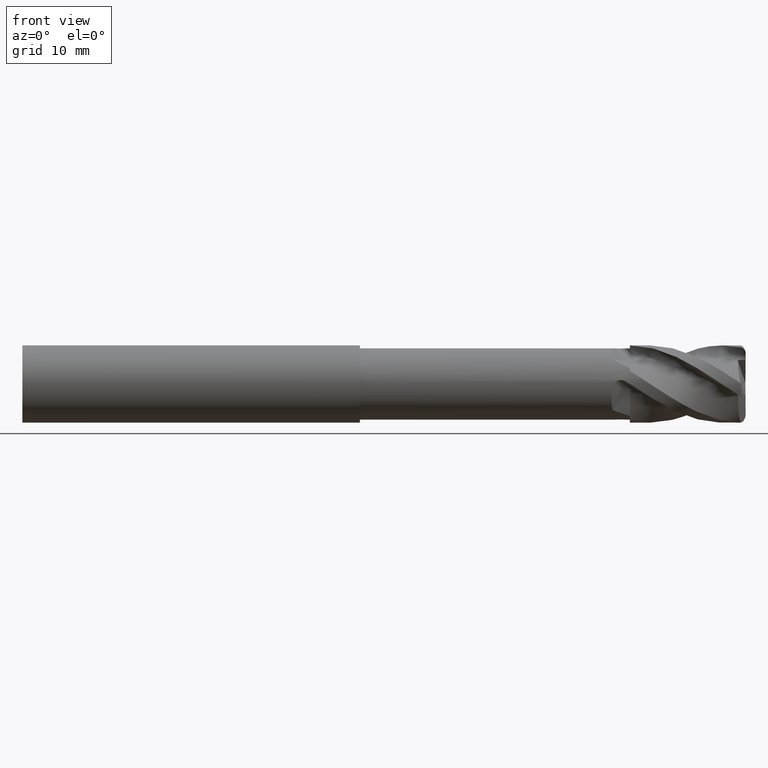
[diagram: clean part render]
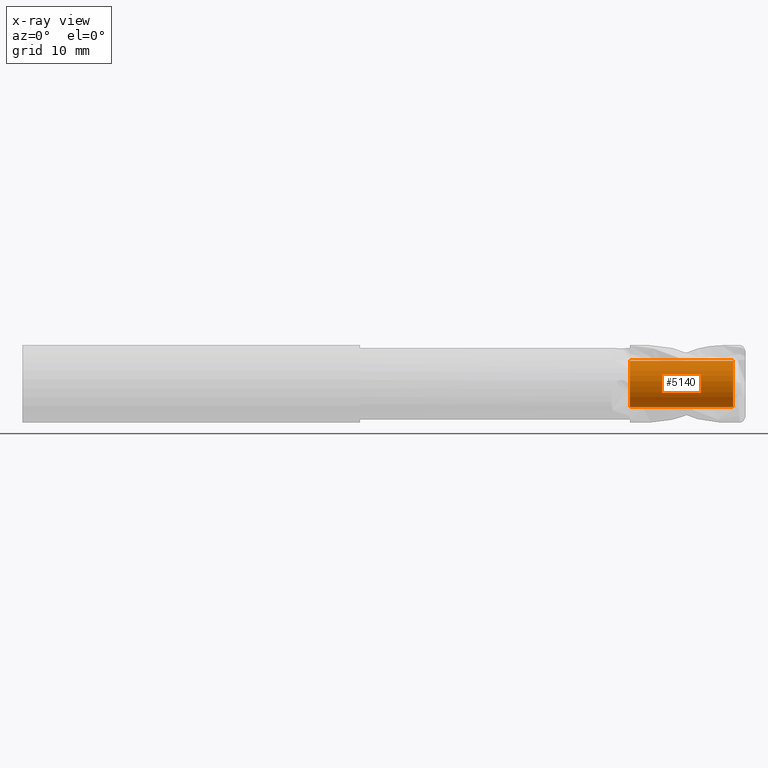
[diagram: x-ray — body ghosted, one internal face saturated and labeled with its STEP entity id]
A machine part, front view, then the same camera in x-ray: the body is ghosted and one INTERNAL B-rep face — a face not visible from any outside direction — is saturated and labeled: STEP entity #5140.
In plain terms, the highlighted cylindrical surface (edge-blend (fillet) strip) has radius 2.4 mm, axis along (-1, -0, -0).
Its self-contained STEP definition (entity closure, byte-faithful):
#442 = CARTESIAN_POINT ( 'NONE',  ( -39.76065438357068200, 0.0000000000000000000, 2.400000000000016800 ) ) ;
#448 = DIRECTION ( 'NONE',  ( -1.000000000000000000, -0.0000000000000000000, -0.0000000000000000000 ) ) ;
#456 = CARTESIAN_POINT ( 'NONE',  ( 26.99999999999999600, 0.0000000000000000000, 0.0000000000000000000 ) ) ;
#467 = CARTESIAN_POINT ( 'NONE',  ( -39.76065438357068200, 2.939152317953667800E-016, -2.400000000000016800 ) ) ;
#479 = DIRECTION ( 'NONE',  ( -1.000000000000000000, -0.0000000000000000000, -0.0000000000000000000 ) ) ;
#480 = DIRECTION ( 'NONE',  ( 0.0000000000000000000, 0.0000000000000000000, 1.000000000000000000 ) ) ;
#482 = DIRECTION ( 'NONE',  ( -1.000000000000000000, -0.0000000000000000000, -0.0000000000000000000 ) ) ;
#520 = CARTESIAN_POINT ( 'NONE',  ( 37.69040044543016400, 0.0000000000000000000, 0.0000000000000000000 ) ) ;
#528 = DIRECTION ( 'NONE',  ( -1.000000000000000000, -0.0000000000000000000, -0.0000000000000000000 ) ) ;
#529 = DIRECTION ( 'NONE',  ( 0.0000000000000000000, 0.0000000000000000000, 1.000000000000000000 ) ) ;
#2164 = ORIENTED_EDGE ( 'NONE', *, *, #2412, .T. ) ;
#2172 = EDGE_LOOP ( 'NONE', ( #4017, #3956, #2164, #4172 ) ) ;
#2309 = AXIS2_PLACEMENT_3D ( 'NONE', #520, #528, #529 ) ;
#2318 = AXIS2_PLACEMENT_3D ( 'NONE', #456, #479, #480 ) ;
#2403 = EDGE_CURVE ( 'NONE', #3369, #3352, #4191, .T. ) ;
#2412 = EDGE_CURVE ( 'NONE', #3190, #3352, #4213, .T. ) ;
#2413 = EDGE_CURVE ( 'NONE', #3350, #3190, #4212, .T. ) ;
#2426 = EDGE_CURVE ( 'NONE', #3350, #3369, #4236, .T. ) ;
#2574 = AXIS2_PLACEMENT_3D ( 'NONE', #5575, #5574, #5573 ) ;
#3190 = VERTEX_POINT ( 'NONE', #4861 ) ;
#3350 = VERTEX_POINT ( 'NONE', #4903 ) ;
#3352 = VERTEX_POINT ( 'NONE', #4905 ) ;
#3369 = VERTEX_POINT ( 'NONE', #4913 ) ;
#3956 = ORIENTED_EDGE ( 'NONE', *, *, #2413, .T. ) ;
#4017 = ORIENTED_EDGE ( 'NONE', *, *, #2426, .F. ) ;
#4172 = ORIENTED_EDGE ( 'NONE', *, *, #2403, .F. ) ;
#4191 = LINE ( 'NONE', #442, #4210 ) ;
#4205 = VECTOR ( 'NONE', #482, 1000.000000000000000 ) ;
#4210 = VECTOR ( 'NONE', #448, 1000.000000000000000 ) ;
#4212 = LINE ( 'NONE', #467, #4205 ) ;
#4213 = CIRCLE ( 'NONE', #2318, 2.400000000000016800 ) ;
#4236 = CIRCLE ( 'NONE', #2309, 2.400000000000017200 ) ;
#4318 = FACE_OUTER_BOUND ( 'NONE', #2172, .T. ) ;
#4319 = CYLINDRICAL_SURFACE ( 'NONE', #2574, 2.400000000000016800 ) ;
#4861 = CARTESIAN_POINT ( 'NONE',  ( 26.99999999999999600, 2.939152317953667800E-016, -2.400000000000016800 ) ) ;
#4903 = CARTESIAN_POINT ( 'NONE',  ( 37.69040044543016400, 2.939152317953668300E-016, -2.400000000000017200 ) ) ;
#4905 = CARTESIAN_POINT ( 'NONE',  ( 26.99999999999999600, 0.0000000000000000000, 2.400000000000016800 ) ) ;
#4913 = CARTESIAN_POINT ( 'NONE',  ( 37.69040044543016400, 0.0000000000000000000, 2.400000000000017200 ) ) ;
#5140 = ADVANCED_FACE ( 'NONE', ( #4318 ), #4319, .F. ) ;
#5573 = DIRECTION ( 'NONE',  ( 0.0000000000000000000, 0.0000000000000000000, 1.000000000000000000 ) ) ;
#5574 = DIRECTION ( 'NONE',  ( -1.000000000000000000, -0.0000000000000000000, -0.0000000000000000000 ) ) ;
#5575 = CARTESIAN_POINT ( 'NONE',  ( -39.76065438357068200, 0.0000000000000000000, 0.0000000000000000000 ) ) ;